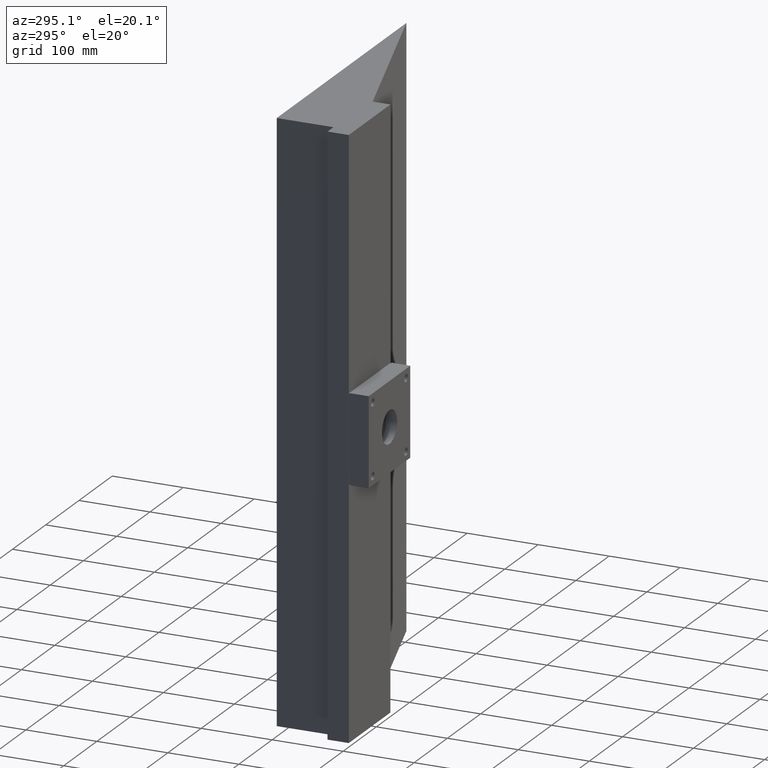
[diagram: clean part render]
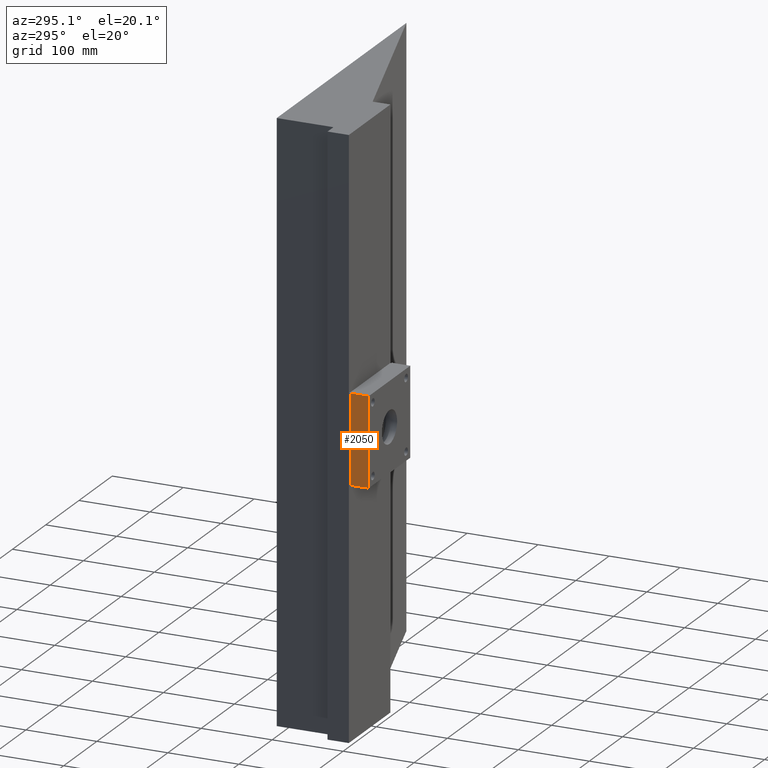
[diagram: same view with one face highlighted and labeled with its STEP entity id]
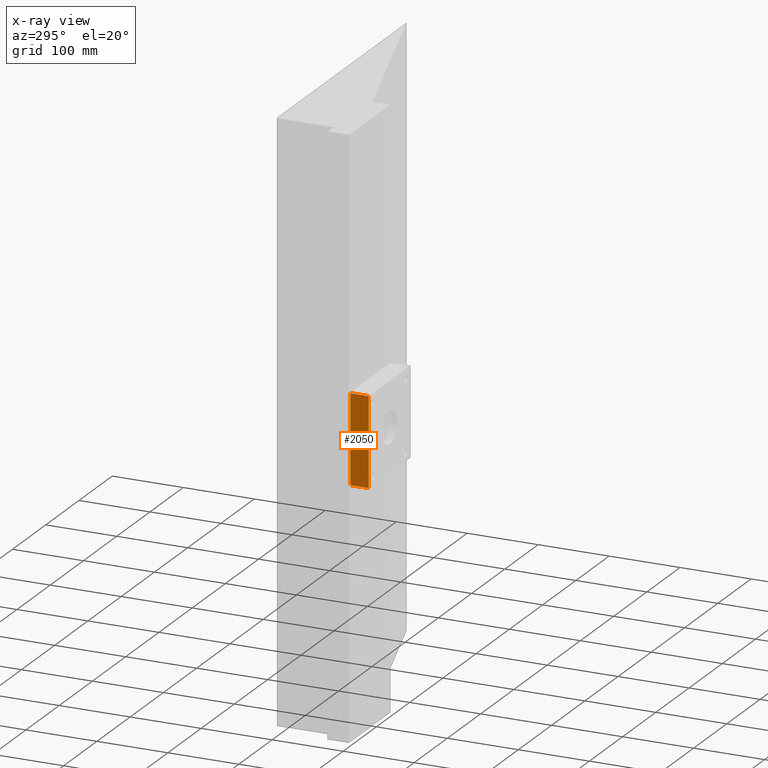
[diagram: x-ray of the same camera — body ghosted, the highlighted face saturated]
A machine part, auxiliary view. The second image highlights one B-rep face of the part: STEP entity #2050.
The next image is the same camera in x-ray: the body ghosted, the highlighted face saturated — about 0% of this face is hidden behind the body in this view.
In plain terms, the highlighted planar face has unit normal (1, 0, -0).
Its self-contained STEP definition (entity closure, byte-faithful):
#139 = CARTESIAN_POINT ( 'NONE',  ( -104.1163824607953200, -138.0000000000000300, -62.50000000000061100 ) ) ;
#149 = ORIENTED_EDGE ( 'NONE', *, *, #273, .T. ) ;
#173 = EDGE_CURVE ( 'NONE', #1403, #888, #1602, .T. ) ;
#181 = VECTOR ( 'NONE', #454, 1000.000000000000000 ) ;
#273 = EDGE_CURVE ( 'NONE', #1403, #1561, #303, .T. ) ;
#303 = LINE ( 'NONE', #1873, #181 ) ;
#333 = CARTESIAN_POINT ( 'NONE',  ( -104.1163824607953200, -112.0000000000000400, 62.49999999999938900 ) ) ;
#454 = DIRECTION ( 'NONE',  ( -0.0000000000000000000, -1.000000000000000000, -0.0000000000000000000 ) ) ;
#477 = DIRECTION ( 'NONE',  ( -0.0000000000000000000, -1.000000000000000000, -0.0000000000000000000 ) ) ;
#804 = VECTOR ( 'NONE', #477, 1000.000000000000000 ) ;
#888 = VERTEX_POINT ( 'NONE', #2674 ) ;
#906 = VECTOR ( 'NONE', #2765, 1000.000000000000000 ) ;
#913 = DIRECTION ( 'NONE',  ( -1.110223024625156500E-016, 0.0000000000000000000, -1.000000000000000000 ) ) ;
#919 = DIRECTION ( 'NONE',  ( 1.000000000000000000, 0.0000000000000000000, -1.110223024625156500E-016 ) ) ;
#931 = CARTESIAN_POINT ( 'NONE',  ( -104.1163824607953200, -112.0000000000000400, -62.50000000000061100 ) ) ;
#941 = EDGE_CURVE ( 'NONE', #1561, #1704, #983, .T. ) ;
#958 = PLANE ( 'NONE',  #1218 ) ;
#983 = LINE ( 'NONE', #2493, #906 ) ;
#1125 = ORIENTED_EDGE ( 'NONE', *, *, #2529, .F. ) ;
#1139 = CARTESIAN_POINT ( 'NONE',  ( -104.1163824607953200, -112.0000000000000400, -62.50000000000061100 ) ) ;
#1218 = AXIS2_PLACEMENT_3D ( 'NONE', #931, #919, #913 ) ;
#1269 = CARTESIAN_POINT ( 'NONE',  ( -104.1163824607953200, -138.0000000000000300, 62.49999999999938900 ) ) ;
#1403 = VERTEX_POINT ( 'NONE', #1139 ) ;
#1552 = CARTESIAN_POINT ( 'NONE',  ( -104.1163824607953200, -112.0000000000000400, -62.50000000000061100 ) ) ;
#1561 = VERTEX_POINT ( 'NONE', #139 ) ;
#1602 = LINE ( 'NONE', #1552, #1962 ) ;
#1641 = FACE_OUTER_BOUND ( 'NONE', #2591, .T. ) ;
#1704 = VERTEX_POINT ( 'NONE', #1269 ) ;
#1714 = ORIENTED_EDGE ( 'NONE', *, *, #941, .T. ) ;
#1873 = CARTESIAN_POINT ( 'NONE',  ( -104.1163824607953200, -112.0000000000000400, -62.50000000000061100 ) ) ;
#1917 = LINE ( 'NONE', #333, #804 ) ;
#1962 = VECTOR ( 'NONE', #2190, 1000.000000000000000 ) ;
#2050 = ADVANCED_FACE ( 'NONE', ( #1641 ), #958, .F. ) ;
#2190 = DIRECTION ( 'NONE',  ( 1.110223024625156500E-016, 0.0000000000000000000, 1.000000000000000000 ) ) ;
#2301 = ORIENTED_EDGE ( 'NONE', *, *, #173, .F. ) ;
#2493 = CARTESIAN_POINT ( 'NONE',  ( -104.1163824607953200, -138.0000000000000300, -62.50000000000061100 ) ) ;
#2529 = EDGE_CURVE ( 'NONE', #888, #1704, #1917, .T. ) ;
#2591 = EDGE_LOOP ( 'NONE', ( #1714, #1125, #2301, #149 ) ) ;
#2674 = CARTESIAN_POINT ( 'NONE',  ( -104.1163824607953200, -112.0000000000000400, 62.49999999999938900 ) ) ;
#2765 = DIRECTION ( 'NONE',  ( 1.110223024625156500E-016, 0.0000000000000000000, 1.000000000000000000 ) ) ;